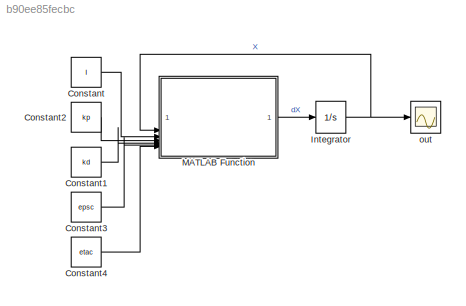
MODEL slx_b90ee85fecbc
KIND model
CONFIG AbsTol = auto
CONFIG EnableMultiTasking = off
CONFIG FixedStep = auto
CONFIG MaxStep = auto
CONFIG MinStep = auto
CONFIG RelTol = 1e-3
CONFIG SampleTimeConstraint = Unconstrained
CONFIG SolverName = VariableStepAuto
CONFIG StartTime = 0.0
CONFIG StopTime = 10.0
BLOCK [Constant] Constant
  Value = I
BLOCK [Constant] Constant1
  NameLocation = top
  Value = kd
BLOCK [Constant] Constant2
  NameLocation = top
  Value = kp
BLOCK [Constant] Constant3
  NameLocation = top
  Value = epsc
BLOCK [Constant] Constant4
  NameLocation = top
  Value = etac
BLOCK [Integrator] Integrator
  InitialCondition = X0
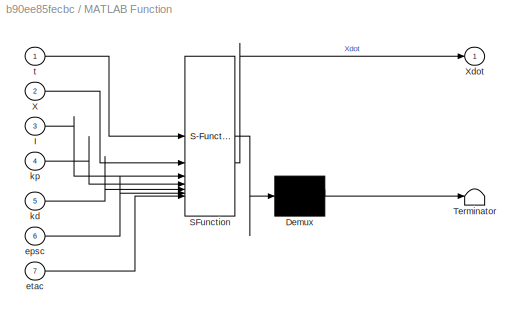
BLOCK [SubSystem] MATLAB Function
  ErrorFcn = Stateflow.Translate.translate
  PermitHierarchicalResolution = ExplicitOnly
  SFBlockType = MATLAB Function
  TreatAsAtomicUnit = on
BLOCK [Demux] MATLAB Function/ Demux 
  Outputs = 1
BLOCK [S-Function] MATLAB Function/ SFunction 
  EnableBusSupport = on
  FunctionName = sf_sfun
  PortCounts = [7 2]
  SFcnIsStateOwnerBlock = off
  SFunctionDeploymentMode = off
  Tag = Stateflow S-Function 2
BLOCK [Terminator] MATLAB Function/ Terminator 
BLOCK [Inport] MATLAB Function/I
  Port = 3
BLOCK [Inport] MATLAB Function/X
  Port = 2
BLOCK [Outport] MATLAB Function/Xdot
  VectorParamsAs1DForOutWhenUnconnected = off
BLOCK [Inport] MATLAB Function/epsc
  Port = 6
BLOCK [Inport] MATLAB Function/etac
  Port = 7
BLOCK [Inport] MATLAB Function/kd
  Port = 5
BLOCK [Inport] MATLAB Function/kp
  Port = 4
BLOCK [Inport] MATLAB Function/t
BLOCK [Scope] out
  Floating = off
  NumInputPorts = 1
  ScopeSpecificationString = Simulink.scopes.TimeScopeBlockCfg('CurrentConfiguration', extmgr.ConfigurationSet(extmgr.Configuration('Core','General UI',true),extmgr.Configuration('Core','Source UI',true),extmgr.Configuration('Sources','WiredSimulink',true,'DataLogging',true),extmgr.Configuration('Visuals','Time Domain',true,'SerializedDisplays',{struct('MinYLimReal','-0.155','MaxYLimReal','0.155','YLabelReal','','MinYLimMag',...<+1414ch>
LINE Constant1:1 -> MATLAB Function:5
LINE Constant2:1 -> MATLAB Function:4
LINE Constant3:1 -> MATLAB Function:6
LINE Constant4:1 -> MATLAB Function:7
LINE Constant:1 -> MATLAB Function:3
NET Integrator:1 -> MATLAB Function:2, out:1
LINE MATLAB Function:1 -> Integrator:1
note: NET lines group one-source signal fan-out (src -> all destinations, sorted); 1:1 wires keep LINE
CHART MATLAB Function states=1 transitions=1
  STATE_LABEL 'eML_blk_kernel()'
  STATE_LABEL 'SCRIPT:\nfunction Xdot = EOMlinear(t,X,I,kp,kd,epsc,etac)\n% pass through function calls shared ODE (because this is the world we live in)\nXdot = zeros(6,1);\nXdot = EOM_ODElinear(t,X,I,kp,kd,epsc,etac);\nend'
CHART  states=0 transitions=0
